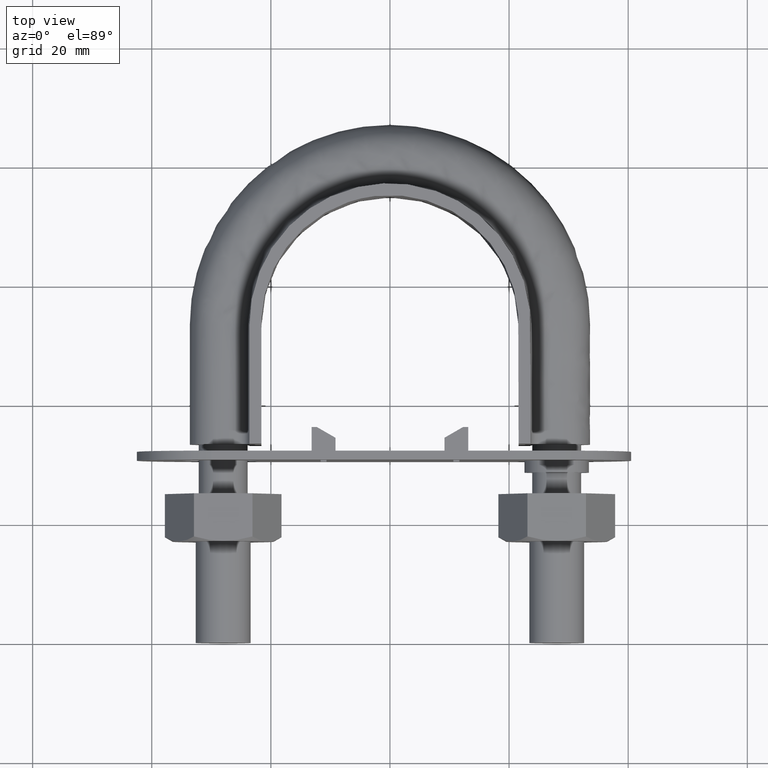
[diagram: clean part render]
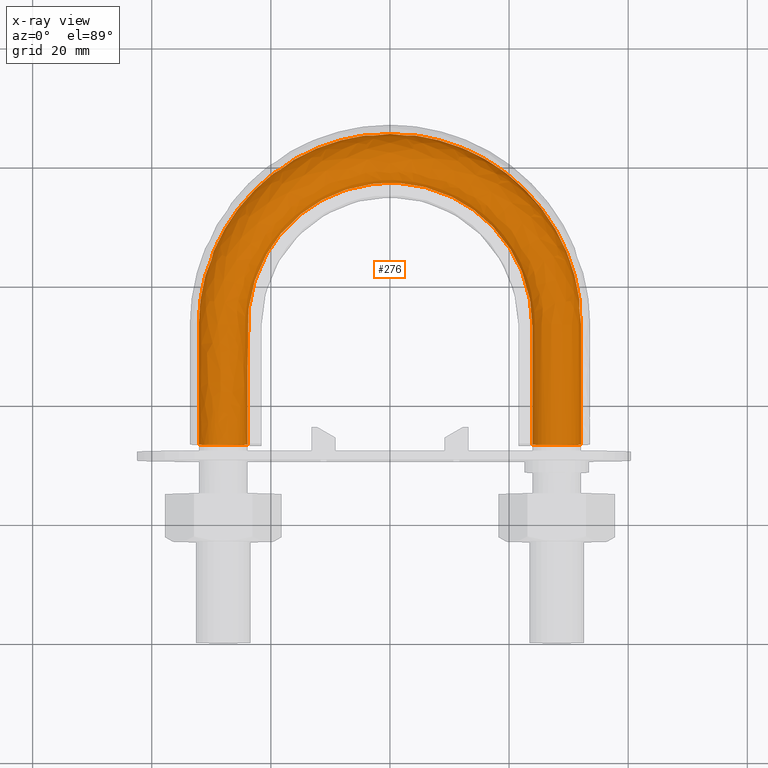
[diagram: x-ray — body ghosted, one internal face saturated and labeled with its STEP entity id]
A machine part, top view, then the same camera in x-ray: the body is ghosted and one INTERNAL B-rep face — a face not visible from any outside direction — is saturated and labeled: STEP entity #276.
In plain terms, the highlighted face is a freeform B-spline surface patch.
Its self-contained STEP definition (entity closure, byte-faithful):
#276 = ADVANCED_FACE( '', ( #403, #404 ), #405, .T. );
#403 = FACE_OUTER_BOUND( '', #1336, .T. );
#404 = FACE_OUTER_BOUND( '', #1337, .T. );
#405 = B_SPLINE_SURFACE_WITH_KNOTS( '', 3, 3, ( ( #1338, #1339, #1340, #1341, #1342, #1343, #1344, #1345, #1346, #1347, #1348, #1349, #1350, #1351, #1352 ), ( #1353, #1354, #1355, #1356, #1357, #1358, #1359, #1360, #1361, #1362, #1363, #1364, #1365, #1366, #1367 ), ( #1368, #1369, #1370, #1371, #1372, #1373, #1374, #1375, #1376, #1377, #1378, #1379, #1380, #1381, #1382 ), ( #1383, #1384, #1385, #1386, #1387, #1388, #1389, #1390, #1391, #1392, #1393, #1394, #1395, #1396, #1397 ), ( #1398, #1399, #1400, #1401, #1402, #1403, #1404, #1405, #1406, #1407, #1408, #1409, #1410, #1411, #1412 ), ( #1413, #1414, #1415, #1416, #1417, #1418, #1419, #1420, #1421, #1422, #1423, #1424, #1425, #1426, #1427 ), ( #1428, #1429, #1430, #1431, #1432, #1433, #1434, #1435, #1436, #1437, #1438, #1439, #1440, #1441, #1442 ), ( #1443, #1444, #1445, #1446, #1447, #1448, #1449, #1450, #1451, #1452, #1453, #1454, #1455, #1456, #1457 ), ( #1458, #1459, #1460, #1461, #1462, #1463, #1464, #1465, #1466, #1467, #1468, #1469, #1470, #1471, #1472 ), ( #1473, #1474, #1475, #1476, #1477, #1478, #1479, #1480, #1481, #1482, #1483, #1484, #1485, #1486, #1487 ) ), .UNSPECIFIED., .T., .F., .F., ( 2, 1, 1, 1, 1, 1, 1, 1, 1, 1, 1, 2 ), ( 4, 3, 1, 1, 1, 1, 1, 3, 4 ), ( -0.285714285714286, -0.142857142857143, 0.000000000000000, 0.142857142857143, 0.285714285714286, 0.428571428571429, 0.571428571428571, 0.714285714285714, 0.857142857142857, 1.00000000000000, 1.14285714285714, 1.28571428571429 ), ( 0.000000000000000, 1.00000000000000, 2.00000000000000, 3.00000000000000, 4.00000000000000, 5.00000000000000, 6.00000000000000, 7.00000000000000, 8.00000000000000 ), .UNSPECIFIED. );
#1336 = EDGE_LOOP( '', ( #1794, #1795, #1796, #1797, #1798, #1799, #1800 ) );
#1337 = EDGE_LOOP( '', ( #1801, #1802, #1803, #1804, #1805, #1806, #1807 ) );
#1338 = CARTESIAN_POINT( '', ( 25.0768231851220, 30.3000000000000, -3.66554778583225 ) );
#1339 = CARTESIAN_POINT( '', ( 25.0768231851220, 38.0000000000000, -3.66554778583225 ) );
#1340 = CARTESIAN_POINT( '', ( 25.0768231851220, 45.7000000000000, -3.66554778583225 ) );
#1341 = CARTESIAN_POINT( '', ( 25.0768231851220, 53.4000000000000, -3.66554778583225 ) );
#1342 = CARTESIAN_POINT( '', ( 25.0768231851220, 57.7626384006497, -3.66554778583225 ) );
#1343 = CARTESIAN_POINT( '', ( 22.7323518094255, 66.5302249840796, -3.66554778583225 ) );
#1344 = CARTESIAN_POINT( '', ( 13.1245294364851, 76.1307245101128, -3.66554778583225 ) );
#1345 = CARTESIAN_POINT( '', ( 1.97286339841017E-014, 79.6498725226265, -3.66554778583225 ) );
#1346 = CARTESIAN_POINT( '', ( -13.1245294364851, 76.1307245101128, -3.66554778583225 ) );
#1347 = CARTESIAN_POINT( '', ( -22.7323518094255, 66.5302249840796, -3.66554778583225 ) );
#1348 = CARTESIAN_POINT( '', ( -25.0768231851219, 57.7626384006496, -3.66554778583225 ) );
#1349 = CARTESIAN_POINT( '', ( -25.0768231851220, 53.4000000000000, -3.66554778583225 ) );
#1350 = CARTESIAN_POINT( '', ( -25.0768231851220, 45.7000000000000, -3.66554778583225 ) );
#1351 = CARTESIAN_POINT( '', ( -25.0768231851220, 38.0000000000000, -3.66554778583225 ) );
#1352 = CARTESIAN_POINT( '', ( -25.0768231851220, 30.3000000000000, -3.66554778583225 ) );
#1353 = CARTESIAN_POINT( '', ( 23.3115884074390, 30.3000000000000, 0.000000000000000 ) );
#1354 = CARTESIAN_POINT( '', ( 23.3115884074390, 38.0000000000000, 0.000000000000000 ) );
#1355 = CARTESIAN_POINT( '', ( 23.3115884074390, 45.7000000000000, 0.000000000000000 ) );
#1356 = CARTESIAN_POINT( '', ( 23.3115884074390, 53.4000000000000, 0.000000000000000 ) );
#1357 = CARTESIAN_POINT( '', ( 23.3115884074390, 57.4473095785620, 0.000000000000000 ) );
#1358 = CARTESIAN_POINT( '', ( 21.1321515888358, 65.6097883574545, 0.000000000000000 ) );
#1359 = CARTESIAN_POINT( '', ( 12.2006534083703, 74.5295416033832, 0.000000000000000 ) );
#1360 = CARTESIAN_POINT( '', ( 2.47065876913820E-014, 77.8026118094670, 0.000000000000000 ) );
#1361 = CARTESIAN_POINT( '', ( -12.2006534083703, 74.5295416033831, 0.000000000000000 ) );
#1362 = CARTESIAN_POINT( '', ( -21.1321515888358, 65.6097883574546, 0.000000000000000 ) );
#1363 = CARTESIAN_POINT( '', ( -23.3115884074390, 57.4473095785620, 0.000000000000000 ) );
#1364 = CARTESIAN_POINT( '', ( -23.3115884074390, 53.4000000000000, 0.000000000000000 ) );
#1365 = CARTESIAN_POINT( '', ( -23.3115884074390, 45.7000000000000, 0.000000000000000 ) );
#1366 = CARTESIAN_POINT( '', ( -23.3115884074390, 38.0000000000000, 0.000000000000000 ) );
#1367 = CARTESIAN_POINT( '', ( -23.3115884074390, 30.3000000000000, 0.000000000000000 ) );
#1368 = CARTESIAN_POINT( '', ( 25.0768231851220, 30.3000000000000, 3.66554778583225 ) );
#1369 = CARTESIAN_POINT( '', ( 25.0768231851220, 38.0000000000000, 3.66554778583225 ) );
#1370 = CARTESIAN_POINT( '', ( 25.0768231851220, 45.7000000000000, 3.66554778583225 ) );
#1371 = CARTESIAN_POINT( '', ( 25.0768231851220, 53.4000000000000, 3.66554778583225 ) );
#1372 = CARTESIAN_POINT( '', ( 25.0768231851220, 57.7626384006496, 3.66554778583225 ) );
#1373 = CARTESIAN_POINT( '', ( 22.7323518094255, 66.5302249840796, 3.66554778583225 ) );
#1374 = CARTESIAN_POINT( '', ( 13.1245294364851, 76.1307245101128, 3.66554778583225 ) );
#1375 = CARTESIAN_POINT( '', ( 2.71012087570032E-014, 79.6498725226265, 3.66554778583225 ) );
#1376 = CARTESIAN_POINT( '', ( -13.1245294364851, 76.1307245101128, 3.66554778583225 ) );
#1377 = CARTESIAN_POINT( '', ( -22.7323518094255, 66.5302249840797, 3.66554778583225 ) );
#1378 = CARTESIAN_POINT( '', ( -25.0768231851219, 57.7626384006497, 3.66554778583225 ) );
#1379 = CARTESIAN_POINT( '', ( -25.0768231851220, 53.4000000000000, 3.66554778583225 ) );
#1380 = CARTESIAN_POINT( '', ( -25.0768231851220, 45.7000000000000, 3.66554778583225 ) );
#1381 = CARTESIAN_POINT( '', ( -25.0768231851220, 38.0000000000000, 3.66554778583225 ) );
#1382 = CARTESIAN_POINT( '', ( -25.0768231851220, 30.3000000000000, 3.66554778583225 ) );
#1383 = CARTESIAN_POINT( '', ( 29.0432697263483, 30.3000000000000, 4.57086332538454 ) );
#1384 = CARTESIAN_POINT( '', ( 29.0432697263483, 38.0000000000000, 4.57086332538454 ) );
#1385 = CARTESIAN_POINT( '', ( 29.0432697263483, 45.7000000000000, 4.57086332538454 ) );
#1386 = CARTESIAN_POINT( '', ( 29.0432697263483, 53.4000000000000, 4.57086332538454 ) );
#1387 = CARTESIAN_POINT( '', ( 29.0432697263483, 58.4711758323449, 4.57086332538453 ) );
#1388 = CARTESIAN_POINT( '', ( 26.3279690669548, 68.5984273106206, 4.57086332538453 ) );
#1389 = CARTESIAN_POINT( '', ( 15.2004600280225, 79.7285498433554, 4.57086332538454 ) );
#1390 = CARTESIAN_POINT( '', ( 2.41400661623703E-014, 83.8006296678447, 4.57086332538454 ) );
#1391 = CARTESIAN_POINT( '', ( -15.2004600280225, 79.7285498433553, 4.57086332538454 ) );
#1392 = CARTESIAN_POINT( '', ( -26.3279690669548, 68.5984273106207, 4.57086332538453 ) );
#1393 = CARTESIAN_POINT( '', ( -29.0432697263483, 58.4711758323449, 4.57086332538454 ) );
#1394 = CARTESIAN_POINT( '', ( -29.0432697263483, 53.4000000000000, 4.57086332538454 ) );
#1395 = CARTESIAN_POINT( '', ( -29.0432697263483, 45.7000000000000, 4.57086332538454 ) );
#1396 = CARTESIAN_POINT( '', ( -29.0432697263483, 38.0000000000000, 4.57086332538454 ) );
#1397 = CARTESIAN_POINT( '', ( -29.0432697263483, 30.3000000000000, 4.57086332538454 ) );
#1398 = CARTESIAN_POINT( '', ( 32.2241128848103, 30.3000000000000, 2.03422555230246 ) );
#1399 = CARTESIAN_POINT( '', ( 32.2241128848103, 38.0000000000000, 2.03422555230246 ) );
#1400 = CARTESIAN_POINT( '', ( 32.2241128848103, 45.7000000000000, 2.03422555230246 ) );
#1401 = CARTESIAN_POINT( '', ( 32.2241128848103, 53.4000000000000, 2.03422555230246 ) );
#1402 = CARTESIAN_POINT( '', ( 32.2241128848103, 59.0393787360515, 2.03422555230246 ) );
#1403 = CARTESIAN_POINT( '', ( 29.2114302292787, 70.2569968015532, 2.03422555230246 ) );
#1404 = CARTESIAN_POINT( '', ( 16.8652271062880, 82.6137817449172, 2.03422555230246 ) );
#1405 = CARTESIAN_POINT( '', ( 1.76088007038727E-014, 87.1292784547568, 2.03422555230246 ) );
#1406 = CARTESIAN_POINT( '', ( -16.8652271062880, 82.6137817449172, 2.03422555230247 ) );
#1407 = CARTESIAN_POINT( '', ( -29.2114302292787, 70.2569968015533, 2.03422555230246 ) );
#1408 = CARTESIAN_POINT( '', ( -32.2241128848102, 59.0393787360515, 2.03422555230246 ) );
#1409 = CARTESIAN_POINT( '', ( -32.2241128848102, 53.4000000000000, 2.03422555230246 ) );
#1410 = CARTESIAN_POINT( '', ( -32.2241128848102, 45.7000000000000, 2.03422555230246 ) );
#1411 = CARTESIAN_POINT( '', ( -32.2241128848102, 38.0000000000000, 2.03422555230246 ) );
#1412 = CARTESIAN_POINT( '', ( -32.2241128848102, 30.3000000000000, 2.03422555230246 ) );
#1413 = CARTESIAN_POINT( '', ( 32.2241128848103, 30.3000000000000, -2.03422555230246 ) );
#1414 = CARTESIAN_POINT( '', ( 32.2241128848103, 38.0000000000000, -2.03422555230246 ) );
#1415 = CARTESIAN_POINT( '', ( 32.2241128848103, 45.7000000000000, -2.03422555230246 ) );
#1416 = CARTESIAN_POINT( '', ( 32.2241128848103, 53.4000000000000, -2.03422555230246 ) );
#1417 = CARTESIAN_POINT( '', ( 32.2241128848103, 59.0393787360515, -2.03422555230246 ) );
#1418 = CARTESIAN_POINT( '', ( 29.2114302292787, 70.2569968015532, -2.03422555230246 ) );
#1419 = CARTESIAN_POINT( '', ( 16.8652271062880, 82.6137817449172, -2.03422555230246 ) );
#1420 = CARTESIAN_POINT( '', ( 1.32719920139306E-014, 87.1292784547568, -2.03422555230246 ) );
#1421 = CARTESIAN_POINT( '', ( -16.8652271062880, 82.6137817449172, -2.03422555230246 ) );
#1422 = CARTESIAN_POINT( '', ( -29.2114302292787, 70.2569968015533, -2.03422555230246 ) );
#1423 = CARTESIAN_POINT( '', ( -32.2241128848102, 59.0393787360515, -2.03422555230246 ) );
#1424 = CARTESIAN_POINT( '', ( -32.2241128848102, 53.4000000000000, -2.03422555230246 ) );
#1425 = CARTESIAN_POINT( '', ( -32.2241128848102, 45.7000000000000, -2.03422555230246 ) );
#1426 = CARTESIAN_POINT( '', ( -32.2241128848102, 38.0000000000000, -2.03422555230246 ) );
#1427 = CARTESIAN_POINT( '', ( -32.2241128848102, 30.3000000000000, -2.03422555230246 ) );
#1428 = CARTESIAN_POINT( '', ( 29.0432697263483, 30.3000000000000, -4.57086332538454 ) );
#1429 = CARTESIAN_POINT( '', ( 29.0432697263483, 38.0000000000000, -4.57086332538454 ) );
#1430 = CARTESIAN_POINT( '', ( 29.0432697263483, 45.7000000000000, -4.57086332538454 ) );
#1431 = CARTESIAN_POINT( '', ( 29.0432697263483, 53.4000000000000, -4.57086332538454 ) );
#1432 = CARTESIAN_POINT( '', ( 29.0432697263483, 58.4711758323449, -4.57086332538454 ) );
#1433 = CARTESIAN_POINT( '', ( 26.3279690669548, 68.5984273106206, -4.57086332538454 ) );
#1434 = CARTESIAN_POINT( '', ( 15.2004600280225, 79.7285498433554, -4.57086332538454 ) );
#1435 = CARTESIAN_POINT( '', ( 1.37317253065095E-014, 83.8006296678447, -4.57086332538454 ) );
#1436 = CARTESIAN_POINT( '', ( -15.2004600280225, 79.7285498433553, -4.57086332538454 ) );
#1437 = CARTESIAN_POINT( '', ( -26.3279690669548, 68.5984273106207, -4.57086332538454 ) );
#1438 = CARTESIAN_POINT( '', ( -29.0432697263483, 58.4711758323449, -4.57086332538454 ) );
#1439 = CARTESIAN_POINT( '', ( -29.0432697263483, 53.4000000000000, -4.57086332538454 ) );
#1440 = CARTESIAN_POINT( '', ( -29.0432697263483, 45.7000000000000, -4.57086332538454 ) );
#1441 = CARTESIAN_POINT( '', ( -29.0432697263483, 38.0000000000000, -4.57086332538454 ) );
#1442 = CARTESIAN_POINT( '', ( -29.0432697263483, 30.3000000000000, -4.57086332538454 ) );
#1443 = CARTESIAN_POINT( '', ( 25.0768231851220, 30.3000000000000, -3.66554778583225 ) );
#1444 = CARTESIAN_POINT( '', ( 25.0768231851220, 38.0000000000000, -3.66554778583225 ) );
#1445 = CARTESIAN_POINT( '', ( 25.0768231851220, 45.7000000000000, -3.66554778583225 ) );
#1446 = CARTESIAN_POINT( '', ( 25.0768231851220, 53.4000000000000, -3.66554778583225 ) );
#1447 = CARTESIAN_POINT( '', ( 25.0768231851220, 57.7626384006497, -3.66554778583225 ) );
#1448 = CARTESIAN_POINT( '', ( 22.7323518094255, 66.5302249840796, -3.66554778583225 ) );
#1449 = CARTESIAN_POINT( '', ( 13.1245294364851, 76.1307245101128, -3.66554778583225 ) );
#1450 = CARTESIAN_POINT( '', ( 1.97286339841017E-014, 79.6498725226265, -3.66554778583225 ) );
#1451 = CARTESIAN_POINT( '', ( -13.1245294364851, 76.1307245101128, -3.66554778583225 ) );
#1452 = CARTESIAN_POINT( '', ( -22.7323518094255, 66.5302249840796, -3.66554778583225 ) );
#1453 = CARTESIAN_POINT( '', ( -25.0768231851219, 57.7626384006496, -3.66554778583225 ) );
#1454 = CARTESIAN_POINT( '', ( -25.0768231851220, 53.4000000000000, -3.66554778583225 ) );
#1455 = CARTESIAN_POINT( '', ( -25.0768231851220, 45.7000000000000, -3.66554778583225 ) );
#1456 = CARTESIAN_POINT( '', ( -25.0768231851220, 38.0000000000000, -3.66554778583225 ) );
#1457 = CARTESIAN_POINT( '', ( -25.0768231851220, 30.3000000000000, -3.66554778583225 ) );
#1458 = CARTESIAN_POINT( '', ( 23.3115884074390, 30.3000000000000, 0.000000000000000 ) );
#1459 = CARTESIAN_POINT( '', ( 23.3115884074390, 38.0000000000000, 0.000000000000000 ) );
#1460 = CARTESIAN_POINT( '', ( 23.3115884074390, 45.7000000000000, 0.000000000000000 ) );
#1461 = CARTESIAN_POINT( '', ( 23.3115884074390, 53.4000000000000, 0.000000000000000 ) );
#1462 = CARTESIAN_POINT( '', ( 23.3115884074390, 57.4473095785620, 0.000000000000000 ) );
#1463 = CARTESIAN_POINT( '', ( 21.1321515888358, 65.6097883574545, 0.000000000000000 ) );
#1464 = CARTESIAN_POINT( '', ( 12.2006534083703, 74.5295416033832, 0.000000000000000 ) );
#1465 = CARTESIAN_POINT( '', ( 2.47065876913820E-014, 77.8026118094670, 0.000000000000000 ) );
#1466 = CARTESIAN_POINT( '', ( -12.2006534083703, 74.5295416033831, 0.000000000000000 ) );
#1467 = CARTESIAN_POINT( '', ( -21.1321515888358, 65.6097883574546, 0.000000000000000 ) );
#1468 = CARTESIAN_POINT( '', ( -23.3115884074390, 57.4473095785620, 0.000000000000000 ) );
#1469 = CARTESIAN_POINT( '', ( -23.3115884074390, 53.4000000000000, 0.000000000000000 ) );
#1470 = CARTESIAN_POINT( '', ( -23.3115884074390, 45.7000000000000, 0.000000000000000 ) );
#1471 = CARTESIAN_POINT( '', ( -23.3115884074390, 38.0000000000000, 0.000000000000000 ) );
#1472 = CARTESIAN_POINT( '', ( -23.3115884074390, 30.3000000000000, 0.000000000000000 ) );
#1473 = CARTESIAN_POINT( '', ( 25.0768231851220, 30.3000000000000, 3.66554778583225 ) );
#1474 = CARTESIAN_POINT( '', ( 25.0768231851220, 38.0000000000000, 3.66554778583225 ) );
#1475 = CARTESIAN_POINT( '', ( 25.0768231851220, 45.7000000000000, 3.66554778583225 ) );
#1476 = CARTESIAN_POINT( '', ( 25.0768231851220, 53.4000000000000, 3.66554778583225 ) );
#1477 = CARTESIAN_POINT( '', ( 25.0768231851220, 57.7626384006496, 3.66554778583225 ) );
#1478 = CARTESIAN_POINT( '', ( 22.7323518094255, 66.5302249840796, 3.66554778583225 ) );
#1479 = CARTESIAN_POINT( '', ( 13.1245294364851, 76.1307245101128, 3.66554778583225 ) );
#1480 = CARTESIAN_POINT( '', ( 2.71012087570032E-014, 79.6498725226265, 3.66554778583225 ) );
#1481 = CARTESIAN_POINT( '', ( -13.1245294364851, 76.1307245101128, 3.66554778583225 ) );
#1482 = CARTESIAN_POINT( '', ( -22.7323518094255, 66.5302249840797, 3.66554778583225 ) );
#1483 = CARTESIAN_POINT( '', ( -25.0768231851219, 57.7626384006497, 3.66554778583225 ) );
#1484 = CARTESIAN_POINT( '', ( -25.0768231851220, 53.4000000000000, 3.66554778583225 ) );
#1485 = CARTESIAN_POINT( '', ( -25.0768231851220, 45.7000000000000, 3.66554778583225 ) );
#1486 = CARTESIAN_POINT( '', ( -25.0768231851220, 38.0000000000000, 3.66554778583225 ) );
#1487 = CARTESIAN_POINT( '', ( -25.0768231851220, 30.3000000000000, 3.66554778583225 ) );
#1794 = ORIENTED_EDGE( '', *, *, #2568, .T. );
#1795 = ORIENTED_EDGE( '', *, *, #2569, .F. );
#1796 = ORIENTED_EDGE( '', *, *, #2570, .F. );
#1797 = ORIENTED_EDGE( '', *, *, #2571, .F. );
#1798 = ORIENTED_EDGE( '', *, *, #2572, .F. );
#1799 = ORIENTED_EDGE( '', *, *, #2573, .F. );
#1800 = ORIENTED_EDGE( '', *, *, #2574, .F. );
#1801 = ORIENTED_EDGE( '', *, *, #2575, .T. );
#1802 = ORIENTED_EDGE( '', *, *, #2576, .T. );
#1803 = ORIENTED_EDGE( '', *, *, #2577, .T. );
#1804 = ORIENTED_EDGE( '', *, *, #2567, .T. );
#1805 = ORIENTED_EDGE( '', *, *, #2578, .T. );
#1806 = ORIENTED_EDGE( '', *, *, #2579, .T. );
#1807 = ORIENTED_EDGE( '', *, *, #2580, .T. );
#2567 = EDGE_CURVE( '', #2818, #2816, #2825, .T. );
#2568 = EDGE_CURVE( '', #2826, #2827, #2828, .T. );
#2569 = EDGE_CURVE( '', #2829, #2827, #2830, .T. );
#2570 = EDGE_CURVE( '', #2831, #2829, #2832, .T. );
#2571 = EDGE_CURVE( '', #2833, #2831, #2834, .T. );
#2572 = EDGE_CURVE( '', #2835, #2833, #2836, .T. );
#2573 = EDGE_CURVE( '', #2837, #2835, #2838, .T. );
#2574 = EDGE_CURVE( '', #2826, #2837, #2839, .T. );
#2575 = EDGE_CURVE( '', #2811, #2822, #2840, .T. );
#2576 = EDGE_CURVE( '', #2822, #2820, #2841, .T. );
#2577 = EDGE_CURVE( '', #2820, #2818, #2842, .T. );
#2578 = EDGE_CURVE( '', #2816, #2814, #2843, .T. );
#2579 = EDGE_CURVE( '', #2814, #2812, #2844, .T. );
#2580 = EDGE_CURVE( '', #2812, #2811, #2845, .T. );
#2811 = VERTEX_POINT( '', #3410 );
#2812 = VERTEX_POINT( '', #3411 );
#2814 = VERTEX_POINT( '', #3413 );
#2816 = VERTEX_POINT( '', #3415 );
#2818 = VERTEX_POINT( '', #3417 );
#2820 = VERTEX_POINT( '', #3419 );
#2822 = VERTEX_POINT( '', #3421 );
#2825 = B_SPLINE_CURVE_WITH_KNOTS( '', 3, ( #3424, #3425, #3426, #3427 ), .UNSPECIFIED., .F., .F., ( 4, 4 ), ( 0.0109748044148551, 0.0146317467085369 ), .UNSPECIFIED. );
#2826 = VERTEX_POINT( '', #3428 );
#2827 = VERTEX_POINT( '', #3429 );
#2828 = B_SPLINE_CURVE_WITH_KNOTS( '', 3, ( #3430, #3431, #3432, #3433 ), .UNSPECIFIED., .F., .F., ( 4, 4 ), ( 1.28775049401381E-016, 0.00365969768494518 ), .UNSPECIFIED. );
#2829 = VERTEX_POINT( '', #3434 );
#2830 = B_SPLINE_CURVE_WITH_KNOTS( '', 3, ( #3435, #3436, #3437, #3438 ), .UNSPECIFIED., .F., .F., ( 4, 4 ), ( -0.285714285714286, -0.142857142857143 ), .UNSPECIFIED. );
#2831 = VERTEX_POINT( '', #3439 );
#2832 = B_SPLINE_CURVE_WITH_KNOTS( '', 3, ( #3440, #3441, #3442, #3443 ), .UNSPECIFIED., .F., .F., ( 4, 4 ), ( -0.428571428571429, -0.285714285714286 ), .UNSPECIFIED. );
#2833 = VERTEX_POINT( '', #3444 );
#2834 = B_SPLINE_CURVE_WITH_KNOTS( '', 3, ( #3445, #3446, #3447, #3448 ), .UNSPECIFIED., .F., .F., ( 4, 4 ), ( -0.571428571428571, -0.428571428571429 ), .UNSPECIFIED. );
#2835 = VERTEX_POINT( '', #3449 );
#2836 = B_SPLINE_CURVE_WITH_KNOTS( '', 3, ( #3450, #3451, #3452, #3453 ), .UNSPECIFIED., .F., .F., ( 4, 4 ), ( -0.714285714285714, -0.571428571428571 ), .UNSPECIFIED. );
#2837 = VERTEX_POINT( '', #3454 );
#2838 = B_SPLINE_CURVE_WITH_KNOTS( '', 3, ( #3455, #3456, #3457, #3458 ), .UNSPECIFIED., .F., .F., ( 4, 4 ), ( -0.857142857142857, -0.714285714285714 ), .UNSPECIFIED. );
#2839 = B_SPLINE_CURVE_WITH_KNOTS( '', 3, ( #3459, #3460, #3461, #3462 ), .UNSPECIFIED., .F., .F., ( 4, 4 ), ( -1.00000000000000, -0.857142857142857 ), .UNSPECIFIED. );
#2840 = B_SPLINE_CURVE_WITH_KNOTS( '', 3, ( #3463, #3464, #3465, #3466 ), .UNSPECIFIED., .F., .F., ( 4, 4 ), ( 5.20417042793042E-017, 0.00365969768494560 ), .UNSPECIFIED. );
#2841 = B_SPLINE_CURVE_WITH_KNOTS( '', 3, ( #3467, #3468, #3469, #3470 ), .UNSPECIFIED., .F., .F., ( 4, 4 ), ( 0.00365969768494560, 0.00731437302338651 ), .UNSPECIFIED. );
#2842 = B_SPLINE_CURVE_WITH_KNOTS( '', 3, ( #3471, #3472, #3473, #3474 ), .UNSPECIFIED., .F., .F., ( 4, 4 ), ( 0.00731437302338651, 0.0109748044148551 ), .UNSPECIFIED. );
#2843 = B_SPLINE_CURVE_WITH_KNOTS( '', 3, ( #3475, #3476, #3477, #3478 ), .UNSPECIFIED., .F., .F., ( 4, 4 ), ( 0.0146317467085369, 0.0182856759681271 ), .UNSPECIFIED. );
#2844 = B_SPLINE_CURVE_WITH_KNOTS( '', 3, ( #3479, #3480, #3481, #3482 ), .UNSPECIFIED., .F., .F., ( 4, 4 ), ( 0.0182856759681271, 0.0219456464543655 ), .UNSPECIFIED. );
#2845 = B_SPLINE_CURVE_WITH_KNOTS( '', 3, ( #3483, #3484, #3485, #3486 ), .UNSPECIFIED., .F., .F., ( 4, 4 ), ( 0.0219456464543655, 0.0255944202292315 ), .UNSPECIFIED. );
#3410 = CARTESIAN_POINT( '', ( -23.9000000000000, 33.3000000000000, 5.34345494379736E-014 ) );
#3411 = CARTESIAN_POINT( '', ( -25.4436918123956, 33.3000000000000, 3.20550907813202 ) );
#3413 = CARTESIAN_POINT( '', ( -28.9123358292374, 33.3000000000000, 3.99720443994170 ) );
#3415 = CARTESIAN_POINT( '', ( -31.6939723583999, 33.3000000000000, 1.77892333038195 ) );
#3417 = CARTESIAN_POINT( '', ( -31.6939723583900, 33.3000000000000, -1.77892333040256 ) );
#3419 = CARTESIAN_POINT( '', ( -28.9123358292209, 33.3000000000000, -3.99720443994548 ) );
#3421 = CARTESIAN_POINT( '', ( -25.4436918123791, 33.3000000000000, -3.20550907811886 ) );
#3424 = CARTESIAN_POINT( '', ( -31.6939723583900, 33.3000000000000, -1.77892333040258 ) );
#3425 = CARTESIAN_POINT( '', ( -32.2241128848102, 33.3000000000000, -0.678075184117747 ) );
#3426 = CARTESIAN_POINT( '', ( -32.2241128848135, 33.3000000000000, 0.678075184093922 ) );
#3427 = CARTESIAN_POINT( '', ( -31.6939723583999, 33.3000000000000, 1.77892333038194 ) );
#3428 = CARTESIAN_POINT( '', ( 23.9000000000000, 33.3000000000000, -1.29982603829903E-013 ) );
#3429 = CARTESIAN_POINT( '', ( 25.4436918123788, 33.3000000000000, 3.20550907811860 ) );
#3430 = CARTESIAN_POINT( '', ( 23.9000000000000, 33.3000000000000, 4.33680868994202E-016 ) );
#3431 = CARTESIAN_POINT( '', ( 23.9000000000000, 33.3000000000000, 1.22184926194391 ) );
#3432 = CARTESIAN_POINT( '', ( 24.4884115925608, 33.3000000000000, 2.44369852388782 ) );
#3433 = CARTESIAN_POINT( '', ( 25.4436918123788, 33.3000000000000, 3.20550907811859 ) );
#3434 = CARTESIAN_POINT( '', ( 28.9123358292210, 33.3000000000000, 3.99720443994545 ) );
#3435 = CARTESIAN_POINT( '', ( 28.9123358292208, 33.3000000000000, 3.99720443994550 ) );
#3436 = CARTESIAN_POINT( '', ( 27.7211208792727, 33.3000000000000, 4.26909147886714 ) );
#3437 = CARTESIAN_POINT( '', ( 26.3989720321971, 33.3000000000000, 3.96731963234962 ) );
#3438 = CARTESIAN_POINT( '', ( 25.4436918123788, 33.3000000000000, 3.20550907811860 ) );
#3439 = CARTESIAN_POINT( '', ( 31.6939723584000, 33.3000000000000, 1.77892333038186 ) );
#3440 = CARTESIAN_POINT( '', ( 31.6939723584000, 33.3000000000000, 1.77892333038181 ) );
#3441 = CARTESIAN_POINT( '', ( 31.1638318319897, 33.3000000000000, 2.87977147666304 ) );
#3442 = CARTESIAN_POINT( '', ( 30.1035507791691, 33.3000000000000, 3.72531740102378 ) );
#3443 = CARTESIAN_POINT( '', ( 28.9123358292210, 33.3000000000000, 3.99720443994545 ) );
#3444 = CARTESIAN_POINT( '', ( 31.6939723584001, 33.3000000000000, -1.77892333038159 ) );
#3445 = CARTESIAN_POINT( '', ( 31.6939723584001, 33.3000000000000, -1.77892333038163 ) );
#3446 = CARTESIAN_POINT( '', ( 32.2241128848102, 33.3000000000000, -0.678075184100562 ) );
#3447 = CARTESIAN_POINT( '', ( 32.2241128848102, 33.3000000000000, 0.678075184100844 ) );
#3448 = CARTESIAN_POINT( '', ( 31.6939723584000, 33.3000000000000, 1.77892333038185 ) );
#3449 = CARTESIAN_POINT( '', ( 28.9123358292213, 33.3000000000000, -3.99720443994537 ) );
#3450 = CARTESIAN_POINT( '', ( 28.9123358292215, 33.3000000000000, -3.99720443994534 ) );
#3451 = CARTESIAN_POINT( '', ( 30.1035507791694, 33.3000000000000, -3.72531740102355 ) );
#3452 = CARTESIAN_POINT( '', ( 31.1638318319899, 33.3000000000000, -2.87977147666281 ) );
#3453 = CARTESIAN_POINT( '', ( 31.6939723584001, 33.3000000000000, -1.77892333038158 ) );
#3454 = CARTESIAN_POINT( '', ( 25.4436918123817, 33.3000000000000, -3.20550907812093 ) );
#3455 = CARTESIAN_POINT( '', ( 25.4436918123818, 33.3000000000000, -3.20550907812104 ) );
#3456 = CARTESIAN_POINT( '', ( 26.3989720321999, 33.3000000000000, -3.96731963235032 ) );
#3457 = CARTESIAN_POINT( '', ( 27.7211208792742, 33.3000000000000, -4.26909147886694 ) );
#3458 = CARTESIAN_POINT( '', ( 28.9123358292213, 33.3000000000000, -3.99720443994538 ) );
#3459 = CARTESIAN_POINT( '', ( 23.9000000000000, 33.3000000000000, -1.16128894694922E-012 ) );
#3460 = CARTESIAN_POINT( '', ( 23.9000000000003, 33.3000000000000, -1.22184926194569 ) );
#3461 = CARTESIAN_POINT( '', ( 24.4884115925620, 33.3000000000000, -2.44369852389031 ) );
#3462 = CARTESIAN_POINT( '', ( 25.4436918123817, 33.3000000000000, -3.20550907812093 ) );
#3463 = CARTESIAN_POINT( '', ( -23.9000000000000, 33.3000000000000, 3.61039323437673E-014 ) );
#3464 = CARTESIAN_POINT( '', ( -23.9000000000000, 33.3000000000000, -1.22184926194403 ) );
#3465 = CARTESIAN_POINT( '', ( -24.4884115925609, 33.3000000000000, -2.44369852388810 ) );
#3466 = CARTESIAN_POINT( '', ( -25.4436918123791, 33.3000000000000, -3.20550907811886 ) );
#3467 = CARTESIAN_POINT( '', ( -25.4436918123791, 33.3000000000000, -3.20550907811886 ) );
#3468 = CARTESIAN_POINT( '', ( -26.3989720321973, 33.3000000000000, -3.96731963234966 ) );
#3469 = CARTESIAN_POINT( '', ( -27.7211208792728, 33.3000000000000, -4.26909147886712 ) );
#3470 = CARTESIAN_POINT( '', ( -28.9123358292209, 33.3000000000000, -3.99720443994548 ) );
#3471 = CARTESIAN_POINT( '', ( -28.9123358292128, 33.3000000000000, -3.99720443994702 ) );
#3472 = CARTESIAN_POINT( '', ( -30.1035507791582, 33.3000000000000, -3.72531740102817 ) );
#3473 = CARTESIAN_POINT( '', ( -31.1638318319764, 33.3000000000000, -2.87977147667369 ) );
#3474 = CARTESIAN_POINT( '', ( -31.6939723583900, 33.3000000000000, -1.77892333040256 ) );
#3475 = CARTESIAN_POINT( '', ( -31.6939723584024, 33.3000000000000, 1.77892333037632 ) );
#3476 = CARTESIAN_POINT( '', ( -31.1638318319945, 33.3000000000000, 2.87977147665608 ) );
#3477 = CARTESIAN_POINT( '', ( -30.1035507791788, 33.3000000000000, 3.72531740101602 ) );
#3478 = CARTESIAN_POINT( '', ( -28.9123358292374, 33.3000000000000, 3.99720443994170 ) );
#3479 = CARTESIAN_POINT( '', ( -28.9123358292448, 33.3000000000000, 3.99720443993974 ) );
#3480 = CARTESIAN_POINT( '', ( -27.7211208792957, 33.3000000000000, 4.26909147886921 ) );
#3481 = CARTESIAN_POINT( '', ( -26.3989720322170, 33.3000000000000, 3.96731963235666 ) );
#3482 = CARTESIAN_POINT( '', ( -25.4436918123956, 33.3000000000000, 3.20550907813201 ) );
#3483 = CARTESIAN_POINT( '', ( -25.4436918123956, 33.3000000000000, 3.20550907813202 ) );
#3484 = CARTESIAN_POINT( '', ( -24.4884115925677, 33.3000000000000, 2.44369852390217 ) );
#3485 = CARTESIAN_POINT( '', ( -23.9000000000000, 33.3000000000000, 1.22184926195108 ) );
#3486 = CARTESIAN_POINT( '', ( -23.9000000000000, 33.3000000000000, 4.33680868994202E-016 ) );